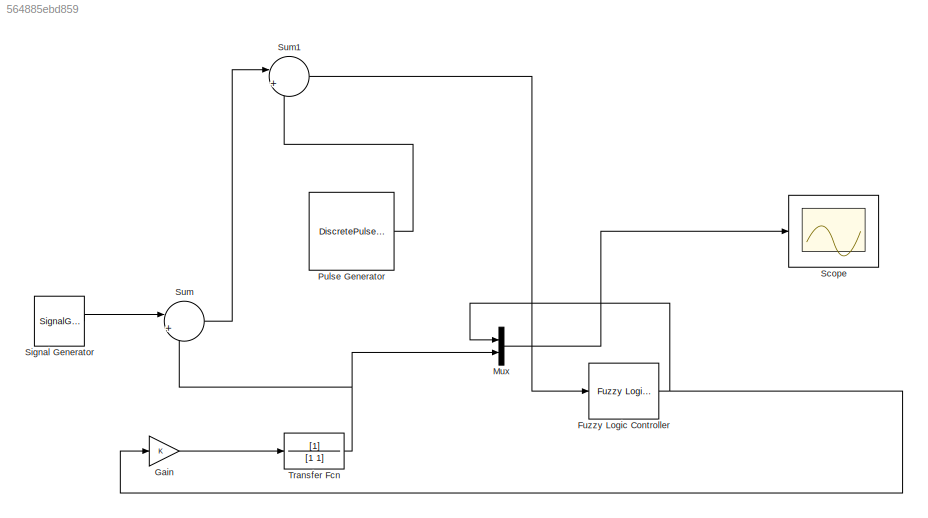
MODEL slx_564885ebd859
KIND model
CONFIG AbsTol = auto
CONFIG EnableMultiTasking = off
CONFIG FixedStep = auto
CONFIG MaxStep = auto
CONFIG MinStep = auto
CONFIG RelTol = 1e-3
CONFIG SampleTimeConstraint = Unconstrained
CONFIG SolverName = VariableStepAuto
CONFIG StartTime = 0.0
CONFIG StopTime = 20.0
BLOCK [Reference] Fuzzy Logic Controller  REF=fuzblock/Fuzzy Logic   (lib defined in mdl_858b3b3e7478)
Controller
  SourceBlock = fuzblock/Fuzzy Logic \nController
  SourceType = Fuzzy Inference System
BLOCK [Gain] Gain
BLOCK [Mux] Mux
  DisplayOption = bar
  Inputs = 2
BLOCK [DiscretePulseGenerator] Pulse Generator
  Amplitude = 3
  Period = 10
  PulseType = Time based
  PulseWidth = 50
BLOCK [Scope] Scope
  Floating = off
  NumInputPorts = 1
  ScopeSpecificationString = Simulink.scopes.TimeScopeBlockCfg('CurrentConfiguration', extmgr.ConfigurationSet(extmgr.Configuration('Core','General UI',true),extmgr.Configuration('Core','Source UI',true),extmgr.Configuration('Sources','WiredSimulink',true),extmgr.Configuration('Visuals','Time Domain',true,'SerializedDisplays',{struct('MinYLimReal','-27.92647','MaxYLimReal','3.10294','YLabelReal','','MinYLimMag','0.00000','Max...<+1505ch>
BLOCK [SignalGenerator] Signal Generator
  Amplitude = 0
  Units = rad/sec
BLOCK [Sum] Sum
  Inputs = |+-
BLOCK [Sum] Sum1
  Inputs = |++
BLOCK [TransferFcn] Transfer Fcn
  Denominator = [1 1]
NET Fuzzy Logic Controller:1 -> Gain:1, Mux:1
LINE Gain:1 -> Transfer Fcn:1
LINE Mux:1 -> Scope:1
LINE Pulse Generator:1 -> Sum1:2
LINE Signal Generator:1 -> Sum:1
LINE Sum1:1 -> Fuzzy Logic Controller:1
LINE Sum:1 -> Sum1:1
NET Transfer Fcn:1 -> Mux:2, Sum:2
note: NET lines group one-source signal fan-out (src -> all destinations, sorted); 1:1 wires keep LINE
